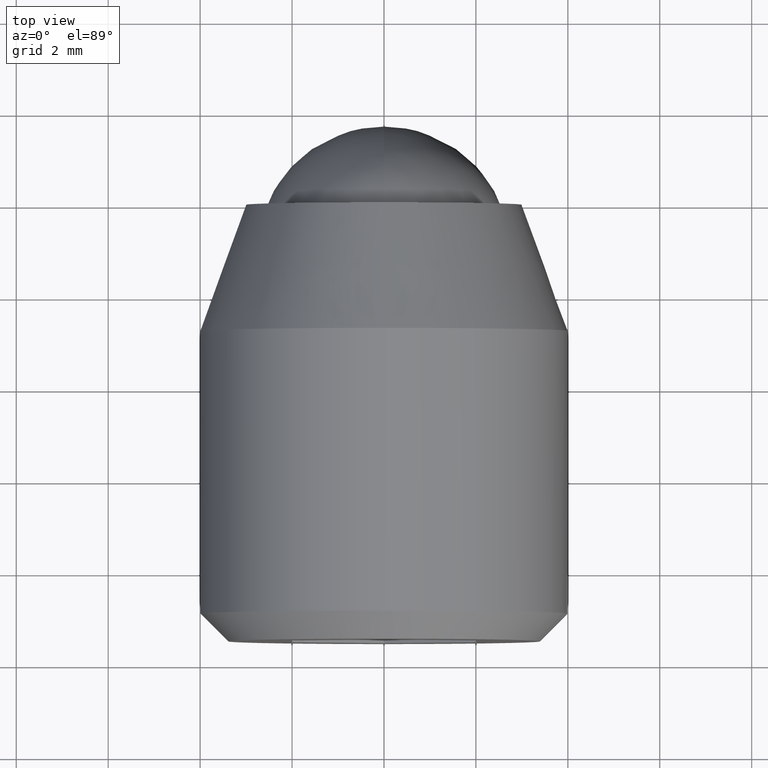
[diagram: clean part render]
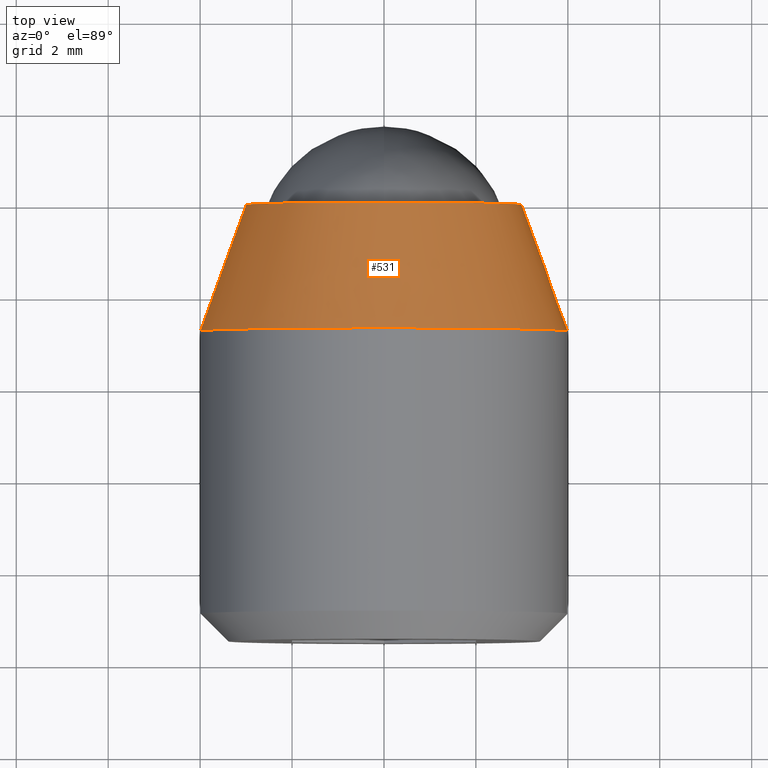
[diagram: same view with one face highlighted and labeled with its STEP entity id]
A machine part, top view. The second image highlights one B-rep face of the part: STEP entity #531.
In plain terms, the highlighted face is a freeform B-spline surface patch.
Its self-contained STEP definition (entity closure, byte-faithful):
#295=CARTESIAN_POINT('',(3.972037385521139,-2.747473917103442,-0.472133488910133));
#296=VERTEX_POINT('',#295);
#310=CARTESIAN_POINT('',(0.0,-2.747477000000000,3.999999999999999));
#311=VERTEX_POINT('',#310);
#312=CARTESIAN_POINT('',(3.972037385521139,-2.747473917103442,-0.472133488910133));
#313=CARTESIAN_POINT('',(3.999998915064733,-2.747473998185204,-0.236894673476042));
#314=CARTESIAN_POINT('',(3.999998948059451,-2.747474089475475,0.000000125038188));
#315=CARTESIAN_POINT('',(3.999999505179631,-2.747475630923755,4.000000058816482));
#316=CARTESIAN_POINT('',(0.0,-2.747477000000000,3.999999999999999));
#324=(BOUNDED_CURVE()B_SPLINE_CURVE(2,(#312,#313,#314,#315,#316),.UNSPECIFIED.,.F.,.U.)B_SPLINE_CURVE_WITH_KNOTS((3,2,3),(0.229562614659823,0.250000000000000,0.500000000000000),.UNSPECIFIED.)CURVE()GEOMETRIC_REPRESENTATION_ITEM()RATIONAL_B_SPLINE_CURVE((0.956027030836438,0.976056113694338,1.0,0.707106781186548,1.0))REPRESENTATION_ITEM(''));
#325=EDGE_CURVE('',#296,#311,#324,.T.);
#327=CARTESIAN_POINT('',(-3.992538964374100,-2.747475426346606,0.244193216148658));
#328=VERTEX_POINT('',#327);
#329=CARTESIAN_POINT('',(0.0,-2.747477000000000,3.999999999999999));
#330=CARTESIAN_POINT('',(-3.762824997636320,-2.747476213173302,3.999999991258105));
#331=CARTESIAN_POINT('',(-3.992538964374101,-2.747475426346606,0.244193216148658));
#339=(BOUNDED_CURVE()B_SPLINE_CURVE(2,(#329,#330,#331),.UNSPECIFIED.,.F.,.U.)B_SPLINE_CURVE_WITH_KNOTS((3,3),(0.500000000000000,0.739333002196671),.UNSPECIFIED.)CURVE()GEOMETRIC_REPRESENTATION_ITEM()RATIONAL_B_SPLINE_CURVE((1.0,0.719603946473320,0.976072127303751))REPRESENTATION_ITEM(''));
#340=EDGE_CURVE('',#311,#328,#339,.T.);
#461=CARTESIAN_POINT('',(2.954203340931907,0.068686925000000,-0.351151848103857));
#462=CARTESIAN_POINT('',(2.964253155959602,0.068686925000000,-0.266603817697984));
#463=CARTESIAN_POINT('',(2.969451025305053,0.068686925000000,-0.181619405116200));
#464=CARTESIAN_POINT('',(3.151070430421253,0.068686925000000,2.787831620188853));
#465=CARTESIAN_POINT('',(0.181619405116200,0.068686925000000,2.969451025305053));
#466=CARTESIAN_POINT('',(-2.787831620188853,0.068686925000000,3.151070430421253));
#467=CARTESIAN_POINT('',(-2.969451025305053,0.068686925000000,0.181619405116199));
#468=CARTESIAN_POINT('',(3.997483974567732,-2.817881098125001,-0.475161565890114));
#469=CARTESIAN_POINT('',(4.011082894440293,-2.817881098125001,-0.360755291973259));
#470=CARTESIAN_POINT('',(4.018116397897026,-2.817881098125001,-0.245758526965009));
#471=CARTESIAN_POINT('',(4.263874924862034,-2.817881098125000,3.772357870932017));
#472=CARTESIAN_POINT('',(0.245758526965009,-2.817881098125001,4.018116397897025));
#473=CARTESIAN_POINT('',(-3.772357870932017,-2.817881098125000,4.263874924862034));
#474=CARTESIAN_POINT('',(-4.018116397897026,-2.817881098125001,0.245758526965008));
#482=(BOUNDED_SURFACE()B_SPLINE_SURFACE(2,1,((#461,#468),(#462,#469),(#463,#470),(#464,#471),(#465,#472),(#466,#473),(#467,#474)),.UNSPECIFIED.,.F.,.F.,.U.)B_SPLINE_SURFACE_WITH_KNOTS((3,2,2,3),(2,2),(0.0,0.266794955524511,6.936668843637269,13.606542731750030),(0.0,3.071821583808665),.UNSPECIFIED.)GEOMETRIC_REPRESENTATION_ITEM()RATIONAL_B_SPLINE_SURFACE(((0.977505800795127,0.977505800795127),(0.988284271247462,0.988284271247462),(1.0,1.0),(0.707106781186548,0.707106781186548),(1.0,1.0),(0.707106781186548,0.707106781186548),(1.0,1.0)))REPRESENTATION_ITEM('')SURFACE());
#483=ORIENTED_EDGE('',*,*,#325,.F.);
#484=CARTESIAN_POINT('',(2.979028274472389,0.000001302136473,-0.354101251421632));
#485=VERTEX_POINT('',#484);
#486=CARTESIAN_POINT('',(2.979028274472389,0.000001302136473,-0.354101251421632));
#487=CARTESIAN_POINT('',(3.972037385521139,-2.747473917103442,-0.472133488910133));
#488=QUASI_UNIFORM_CURVE('',1,(#486,#487),.UNSPECIFIED.,.F.,.U.);
#489=EDGE_CURVE('',#485,#296,#488,.T.);
#490=ORIENTED_EDGE('',*,*,#489,.F.);
#491=CARTESIAN_POINT('',(0.0,0.0,2.999999999999999));
#492=VERTEX_POINT('',#491);
#493=CARTESIAN_POINT('',(2.979028274472389,0.000001302136473,-0.354101251421632));
#494=CARTESIAN_POINT('',(2.999999541751461,0.000001267889521,-0.177671598799914));
#495=CARTESIAN_POINT('',(2.999999555687619,0.000001229330731,0.000000052813049));
#496=CARTESIAN_POINT('',(2.999999791000763,0.000000578262495,3.000000024842628));
#497=CARTESIAN_POINT('',(0.0,0.0,2.999999999999999));
#505=(BOUNDED_CURVE()B_SPLINE_CURVE(2,(#493,#494,#495,#496,#497),.UNSPECIFIED.,.F.,.U.)B_SPLINE_CURVE_WITH_KNOTS((3,2,3),(0.229562552746596,0.250000000000000,0.500000000000000),.UNSPECIFIED.)CURVE()GEOMETRIC_REPRESENTATION_ITEM()RATIONAL_B_SPLINE_CURVE((0.956026909483853,0.976056041158482,1.0,0.707106781186548,1.0))REPRESENTATION_ITEM(''));
#506=EDGE_CURVE('',#485,#492,#505,.T.);
#507=ORIENTED_EDGE('',*,*,#506,.T.);
#508=CARTESIAN_POINT('',(-2.994404395265616,-4.958464E-013,0.183145618607279));
#509=VERTEX_POINT('',#508);
#510=CARTESIAN_POINT('',(0.0,0.0,2.999999999999999));
#511=CARTESIAN_POINT('',(-2.822118200711971,0.0,2.999999999999999));
#512=CARTESIAN_POINT('',(-2.994404395265616,-4.958464E-013,0.183145618607279));
#520=(BOUNDED_CURVE()B_SPLINE_CURVE(2,(#510,#511,#512),.UNSPECIFIED.,.F.,.U.)B_SPLINE_CURVE_WITH_KNOTS((3,3),(0.500000000000000,0.739332962241656),.UNSPECIFIED.)CURVE()GEOMETRIC_REPRESENTATION_ITEM()RATIONAL_B_SPLINE_CURVE((1.0,0.719603993283531,0.976072041672533))REPRESENTATION_ITEM(''));
#521=EDGE_CURVE('',#492,#509,#520,.T.);
#522=ORIENTED_EDGE('',*,*,#521,.T.);
#523=CARTESIAN_POINT('',(-2.994404395265616,-4.958464E-013,0.183145618607279));
#524=CARTESIAN_POINT('',(-3.992538964374100,-2.747475426346606,0.244193216148658));
#525=QUASI_UNIFORM_CURVE('',1,(#523,#524),.UNSPECIFIED.,.F.,.U.);
#526=EDGE_CURVE('',#509,#328,#525,.T.);
#527=ORIENTED_EDGE('',*,*,#526,.T.);
#528=ORIENTED_EDGE('',*,*,#340,.F.);
#529=EDGE_LOOP('',(#483,#490,#507,#522,#527,#528));
#530=FACE_OUTER_BOUND('',#529,.T.);
#531=ADVANCED_FACE('',(#530),#482,.T.);